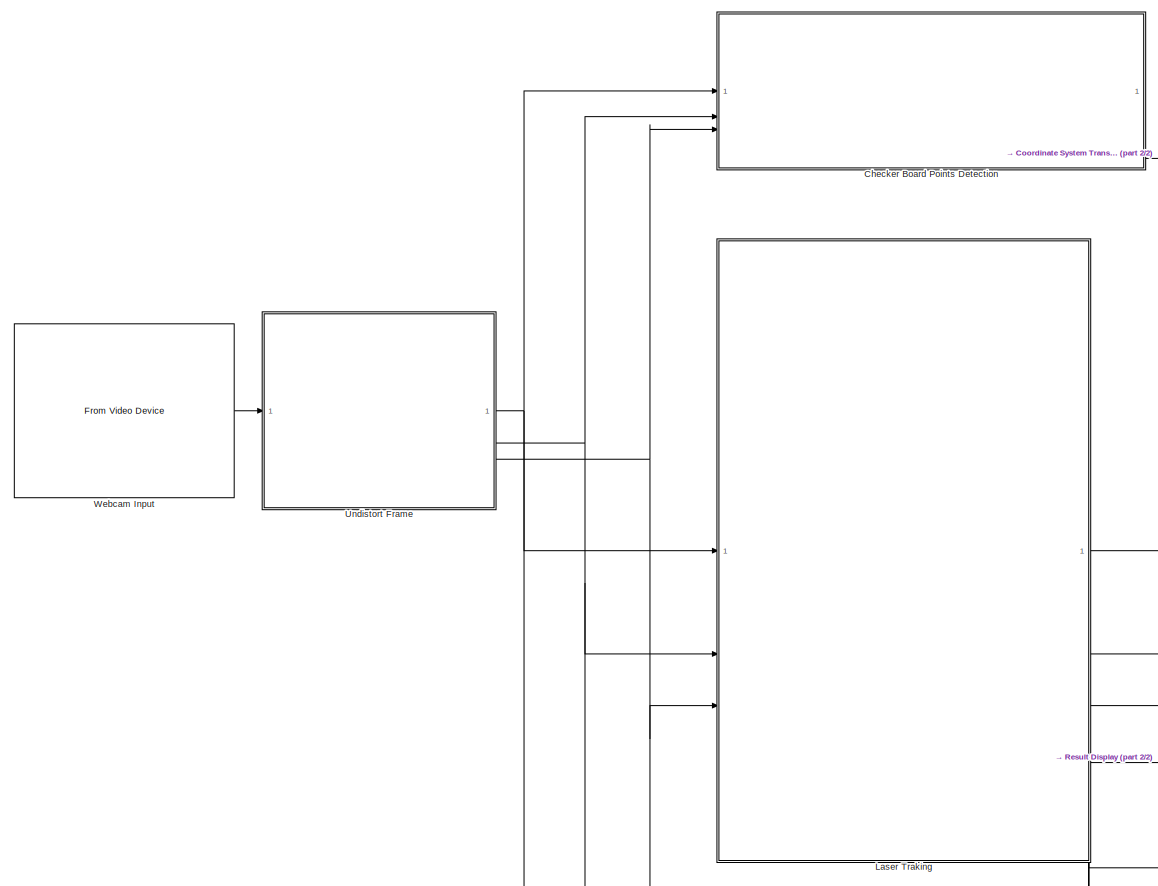
[diagram: root canvas - part 1/2, left side, full height]
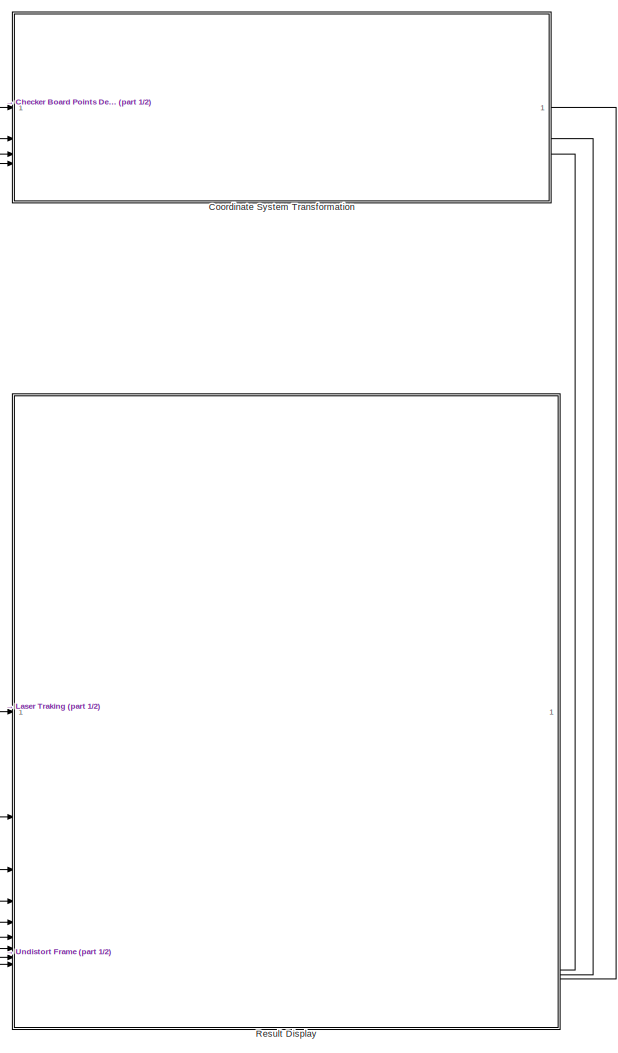
[diagram: root canvas - part 2/2, right side, full height]
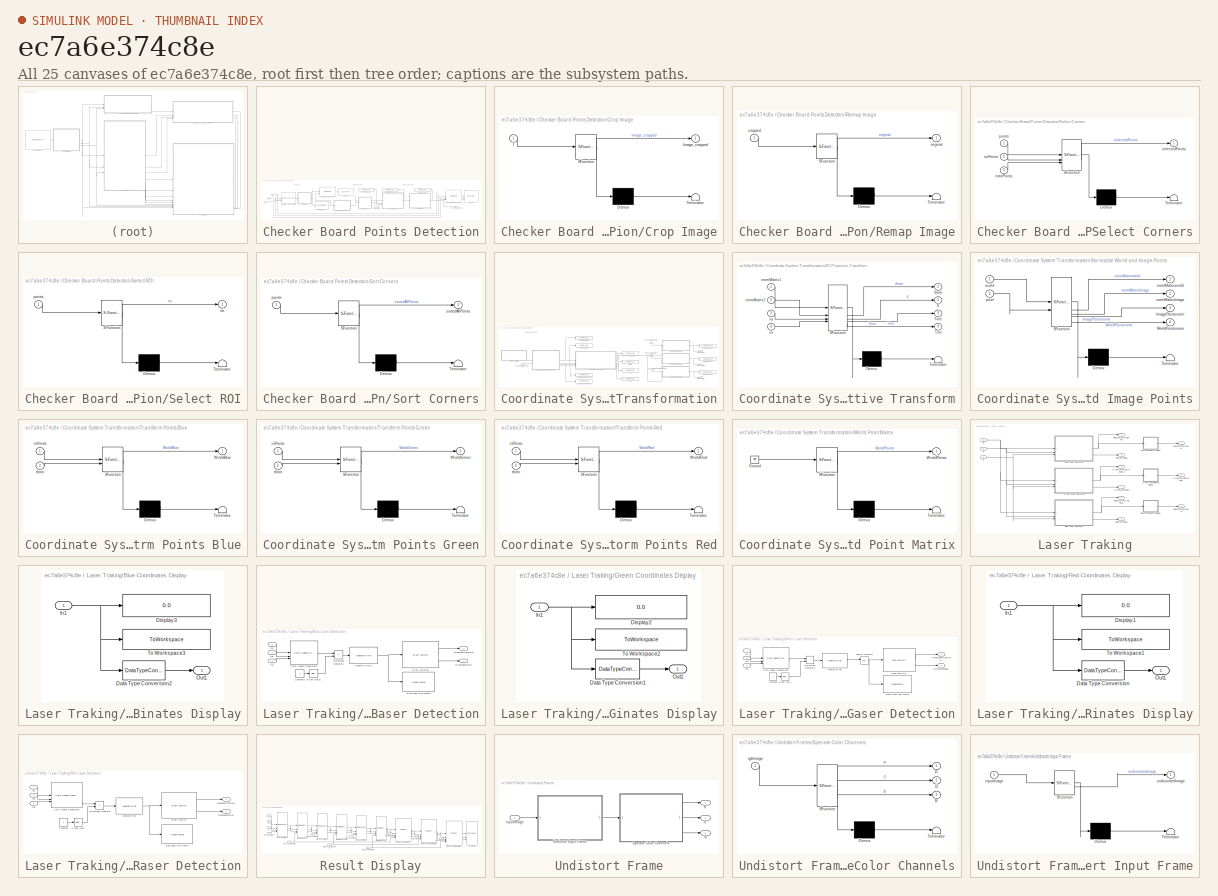
[diagram: thumbnail index - all 25 canvases of the model, root first then tree order]
MODEL slx_ec7a6e374c8e
KIND model
CONFIG AbsTol = auto
CONFIG EnableMultiTasking = on
CONFIG FixedStep = auto
CONFIG MaxStep = auto
CONFIG MinStep = auto
CONFIG RelTol = 1e-3
CONFIG SampleTimeConstraint = Unconstrained
CONFIG SolverName = ode45
CONFIG StartTime = 0.0
CONFIG StopTime = 100.0
BLOCK [SubSystem] Checker Board Points Detection
BLOCK [VideoViewer] Checker Board Points Detection/Alligned
  FigPos = [629.666666666667 1316.66666666667 1589.33333333333 1111.33333333333]
  ScopeSpecificationString = vipscopes.VideoViewerScopeCfg('CurrentConfiguration', extmgr.ConfigurationSet(extmgr.Configuration('Core','General UI',true),extmgr.Configuration('Core','Source UI',true),extmgr.Configuration('Sources','WiredSimulink',true),extmgr.Configuration('Sources','Simulink',false),extmgr.Configuration('Sources','File',false),extmgr.Configuration('Sources','Workspace',false),extmgr.Configuration('Sources','...<+1000ch>
  colormapValue = gray(256)
  imagePorts = separate color signals
BLOCK [Inport] Checker Board Points Detection/B
  Port = 3
BLOCK [Outport] Checker Board Points Detection/CheckerBoardPoints
BLOCK [Reference] Checker Board Points Detection/Color Space Conversion  REF=visionconversions/Color Space
 Conversion
  SourceBlock = visionconversions/Color Space\n Conversion
  SourceType = Color Space Conversion
BLOCK [Constant] Checker Board Points Detection/Constant
  Value = 48
BLOCK [Reference] Checker Board Points Detection/Corner Detection1  REF=visionanalysis/Corner Detection
  SourceBlock = visionanalysis/Corner Detection
  SourceType = Corner Detection
BLOCK [SubSystem] Checker Board Points Detection/Crop Image
  ErrorFcn = Stateflow.Translate.translate
  PermitHierarchicalResolution = ExplicitOnly
  SFBlockType = MATLAB Function
  TreatAsAtomicUnit = on
BLOCK [Demux] Checker Board Points Detection/Crop Image/ Demux 
  Outputs = 1
BLOCK [S-Function] Checker Board Points Detection/Crop Image/ SFunction 
  EnableBusSupport = on
  FunctionName = sf_sfun
  PortCounts = [1 2]
  SFcnIsStateOwnerBlock = off
  SFunctionDeploymentMode = off
  Tag = Stateflow S-Function 6
BLOCK [Terminator] Checker Board Points Detection/Crop Image/ Terminator 
BLOCK [Inport] Checker Board Points Detection/Crop Image/I
BLOCK [Outport] Checker Board Points Detection/Crop Image/Image_cropped
BLOCK [Reference] Checker Board Points Detection/Draw All Detected Corners  REF=visiontextngfix/Draw Markers
  SourceBlock = visiontextngfix/Draw Markers
  SourceType = Draw Markers
BLOCK [Reference] Checker Board Points Detection/Draw All Detected Corners3  REF=visiontextngfix/Draw Markers
  SourceBlock = visiontextngfix/Draw Markers
  SourceType = Draw Markers
BLOCK [Inport] Checker Board Points Detection/G
  Port = 2
BLOCK [Inport] Checker Board Points Detection/R
BLOCK [SubSystem] Checker Board Points Detection/Remap Image
  ErrorFcn = Stateflow.Translate.translate
  PermitHierarchicalResolution = ExplicitOnly
  SFBlockType = MATLAB Function
  TreatAsAtomicUnit = on
BLOCK [Demux] Checker Board Points Detection/Remap Image/ Demux 
  Outputs = 1
BLOCK [S-Function] Checker Board Points Detection/Remap Image/ SFunction 
  EnableBusSupport = on
  FunctionName = sf_sfun
  PortCounts = [1 2]
  SFcnIsStateOwnerBlock = off
  SFunctionDeploymentMode = off
  Tag = Stateflow S-Function 7
BLOCK [Terminator] Checker Board Points Detection/Remap Image/ Terminator 
BLOCK [Inport] Checker Board Points Detection/Remap Image/cropped
BLOCK [Outport] Checker Board Points Detection/Remap Image/original
BLOCK [SubSystem] Checker Board Points Detection/Select Corners
  ErrorFcn = Stateflow.Translate.translate
  PermitHierarchicalResolution = ExplicitOnly
  SFBlockType = MATLAB Function
  TreatAsAtomicUnit = on
BLOCK [Demux] Checker Board Points Detection/Select Corners/ Demux 
  Outputs = 1
BLOCK [S-Function] Checker Board Points Detection/Select Corners/ SFunction 
  EnableBusSupport = on
  FunctionName = sf_sfun
  PortCounts = [3 2]
  SFcnIsStateOwnerBlock = off
  SFunctionDeploymentMode = off
  Tag = Stateflow S-Function 1
BLOCK [Terminator] Checker Board Points Detection/Select Corners/ Terminator 
BLOCK [Inport] Checker Board Points Detection/Select Corners/maxPoints
  Port = 3
BLOCK [Inport] Checker Board Points Detection/Select Corners/points
BLOCK [Inport] Checker Board Points Detection/Select Corners/roiPoints
  Port = 2
BLOCK [Outport] Checker Board Points Detection/Select Corners/selectedPoints
BLOCK [SubSystem] Checker Board Points Detection/Select ROI
  ErrorFcn = Stateflow.Translate.translate
  PermitHierarchicalResolution = ExplicitOnly
  SFBlockType = MATLAB Function
  TreatAsAtomicUnit = on
BLOCK [Demux] Checker Board Points Detection/Select ROI/ Demux 
  Outputs = 1
BLOCK [S-Function] Checker Board Points Detection/Select ROI/ SFunction 
  EnableBusSupport = on
  FunctionName = sf_sfun
  PortCounts = [1 2]
  SFcnIsStateOwnerBlock = off
  SFunctionDeploymentMode = off
  Tag = Stateflow S-Function 2
BLOCK [Terminator] Checker Board Points Detection/Select ROI/ Terminator 
BLOCK [Inport] Checker Board Points Detection/Select ROI/points
BLOCK [Outport] Checker Board Points Detection/Select ROI/roi
BLOCK [SubSystem] Checker Board Points Detection/Sort Corners
  ErrorFcn = Stateflow.Translate.translate
  PermitHierarchicalResolution = ExplicitOnly
  SFBlockType = MATLAB Function
  TreatAsAtomicUnit = on
BLOCK [Demux] Checker Board Points Detection/Sort Corners/ Demux 
  Outputs = 1
BLOCK [S-Function] Checker Board Points Detection/Sort Corners/ SFunction 
  EnableBusSupport = on
  FunctionName = sf_sfun
  PortCounts = [1 2]
  SFcnIsStateOwnerBlock = off
  SFunctionDeploymentMode = off
  Tag = Stateflow S-Function 4
BLOCK [Terminator] Checker Board Points Detection/Sort Corners/ Terminator 
BLOCK [Inport] Checker Board Points Detection/Sort Corners/points
BLOCK [Outport] Checker Board Points Detection/Sort Corners/sortedAllPoints
BLOCK [ToWorkspace] Checker Board Points Detection/To Workspace1
  FixptAsFi = on
  MaxDataPoints = inf
  SampleTime = -1
  Save2DSignal = 2-D array (concatenate along first dimension)
  SaveFormat = Structure With Time
  VariableName = PointsRemoved
BLOCK [ToWorkspace] Checker Board Points Detection/To Workspace2
  FixptAsFi = on
  MaxDataPoints = inf
  SampleTime = -1
  Save2DSignal = 2-D array (concatenate along first dimension)
  SaveFormat = Structure With Time
  VariableName = PointsSelected
BLOCK [ToWorkspace] Checker Board Points Detection/To Workspace4
  FixptAsFi = on
  MaxDataPoints = inf
  NameLocation = top
  SampleTime = -1
  Save2DSignal = 2-D array (concatenate along first dimension)
  SaveFormat = Structure With Time
  VariableName = CheckerboardPoints
BLOCK [VideoViewer] Checker Board Points Detection/cropped
  FigPos = [1282.33333333333 1388.66666666667 1277.33333333333 1286]
  ScopeSpecificationString = vipscopes.VideoViewerScopeCfg('CurrentConfiguration', extmgr.ConfigurationSet(extmgr.Configuration('Core','General UI',true),extmgr.Configuration('Core','Source UI',true),extmgr.Configuration('Sources','WiredSimulink',true),extmgr.Configuration('Visuals','Video',true),extmgr.Configuration('Tools','Image Navigation Tools',true,'Magnification',8,'FitToView',true),extmgr.Configuration('Tools','Image ...<+150ch>
  colormapValue = gray(256)
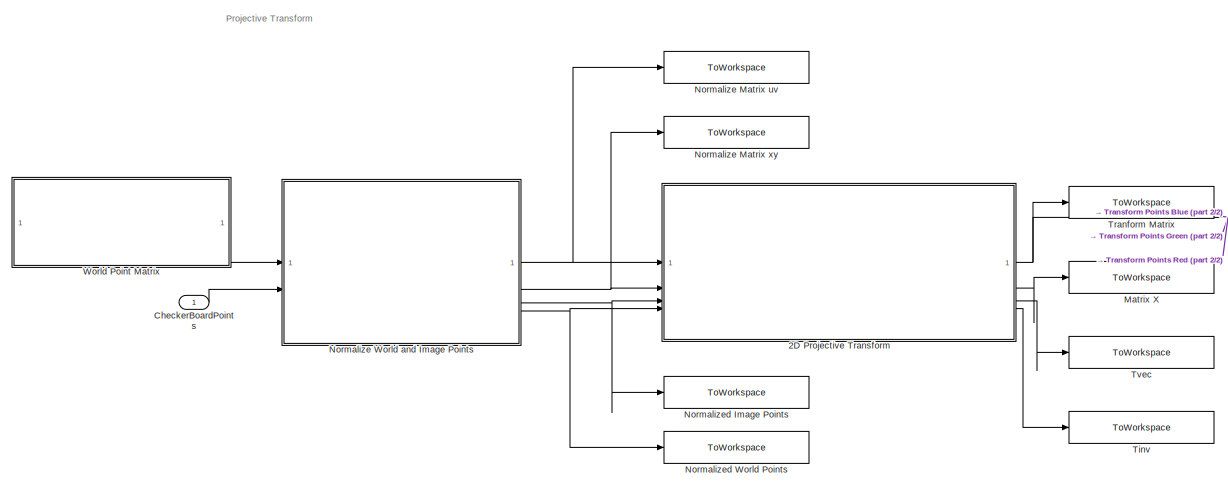
[diagram: Coordinate System Transformation - part 1/2, left side, full height]
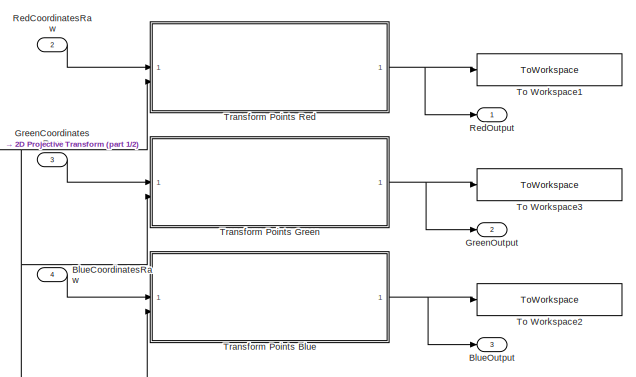
[diagram: Coordinate System Transformation - part 2/2, middle right region]
BLOCK [SubSystem] Coordinate System Transformation
  NameLocation = top
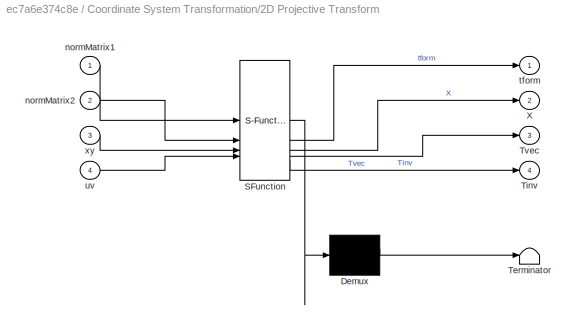
BLOCK [SubSystem] Coordinate System Transformation/2D Projective Transform
  ErrorFcn = Stateflow.Translate.translate
  PermitHierarchicalResolution = ExplicitOnly
  SFBlockType = MATLAB Function
  TreatAsAtomicUnit = on
BLOCK [Demux] Coordinate System Transformation/2D Projective Transform/ Demux 
  Outputs = 1
BLOCK [S-Function] Coordinate System Transformation/2D Projective Transform/ SFunction 
  EnableBusSupport = on
  FunctionName = sf_sfun
  PortCounts = [4 5]
  SFcnIsStateOwnerBlock = off
  SFunctionDeploymentMode = off
  Tag = Stateflow S-Function 24
BLOCK [Terminator] Coordinate System Transformation/2D Projective Transform/ Terminator 
BLOCK [Outport] Coordinate System Transformation/2D Projective Transform/Tinv
  Port = 4
BLOCK [Outport] Coordinate System Transformation/2D Projective Transform/Tvec
  Port = 3
BLOCK [Outport] Coordinate System Transformation/2D Projective Transform/X
  Port = 2
BLOCK [Inport] Coordinate System Transformation/2D Projective Transform/normMatrix1
BLOCK [Inport] Coordinate System Transformation/2D Projective Transform/normMatrix2
  Port = 2
BLOCK [Outport] Coordinate System Transformation/2D Projective Transform/tform
BLOCK [Inport] Coordinate System Transformation/2D Projective Transform/uv
  Port = 4
BLOCK [Inport] Coordinate System Transformation/2D Projective Transform/xy
  Port = 3
BLOCK [Inport] Coordinate System Transformation/BlueCoordinatesRaw
  Port = 4
BLOCK [Outport] Coordinate System Transformation/BlueOutput
  Port = 3
BLOCK [Inport] Coordinate System Transformation/CheckerBoardPoints
BLOCK [Inport] Coordinate System Transformation/GreenCoordinatesRaw
  Port = 3
BLOCK [Outport] Coordinate System Transformation/GreenOutput
  Port = 2
BLOCK [ToWorkspace] Coordinate System Transformation/Matrix X
  FixptAsFi = on
  MaxDataPoints = inf
  SampleTime = -1
  Save2DSignal = 2-D array (concatenate along first dimension)
  SaveFormat = Structure With Time
  VariableName = X
BLOCK [ToWorkspace] Coordinate System Transformation/Normalize Matrix uv
  FixptAsFi = on
  MaxDataPoints = inf
  SampleTime = -1
  Save2DSignal = 2-D array (concatenate along first dimension)
  SaveFormat = Structure With Time
  VariableName = NormMatrixuv
BLOCK [ToWorkspace] Coordinate System Transformation/Normalize Matrix xy
  FixptAsFi = on
  MaxDataPoints = inf
  SampleTime = -1
  Save2DSignal = 2-D array (concatenate along first dimension)
  SaveFormat = Structure With Time
  VariableName = NormMatrixXY
BLOCK [SubSystem] Coordinate System Transformation/Normalize World and Image Points
  ErrorFcn = Stateflow.Translate.translate
  PermitHierarchicalResolution = ExplicitOnly
  SFBlockType = MATLAB Function
  TreatAsAtomicUnit = on
BLOCK [Demux] Coordinate System Transformation/Normalize World and Image Points/ Demux 
  Outputs = 1
BLOCK [S-Function] Coordinate System Transformation/Normalize World and Image Points/ SFunction 
  EnableBusSupport = on
  FunctionName = sf_sfun
  PortCounts = [2 5]
  SFcnIsStateOwnerBlock = off
  SFunctionDeploymentMode = off
  Tag = Stateflow S-Function 23
BLOCK [Terminator] Coordinate System Transformation/Normalize World and Image Points/ Terminator 
BLOCK [Outport] Coordinate System Transformation/Normalize World and Image Points/ImagePointsnorm
  Port = 3
BLOCK [Outport] Coordinate System Transformation/Normalize World and Image Points/WorldPointsnorm
  Port = 4
BLOCK [Outport] Coordinate System Transformation/Normalize World and Image Points/normMatrixImage
  Port = 2
BLOCK [Outport] Coordinate System Transformation/Normalize World and Image Points/normMatrixworld
BLOCK [Inport] Coordinate System Transformation/Normalize World and Image Points/pixel
  Port = 2
BLOCK [Inport] Coordinate System Transformation/Normalize World and Image Points/world
BLOCK [ToWorkspace] Coordinate System Transformation/Normalized Image Points
  FixptAsFi = on
  MaxDataPoints = inf
  SampleTime = -1
  Save2DSignal = 2-D array (concatenate along first dimension)
  SaveFormat = Structure With Time
  VariableName = ImagePointsNorm
BLOCK [ToWorkspace] Coordinate System Transformation/Normalized World Points
  FixptAsFi = on
  MaxDataPoints = inf
  SampleTime = -1
  Save2DSignal = 2-D array (concatenate along first dimension)
  SaveFormat = Structure With Time
  VariableName = WorldPointsnorm
BLOCK [Inport] Coordinate System Transformation/RedCoordinatesRaw
  Port = 2
BLOCK [Outport] Coordinate System Transformation/RedOutput
BLOCK [ToWorkspace] Coordinate System Transformation/Tinv
  FixptAsFi = on
  MaxDataPoints = inf
  SampleTime = -1
  Save2DSignal = 2-D array (concatenate along first dimension)
  SaveFormat = Structure With Time
  VariableName = Tinv
BLOCK [ToWorkspace] Coordinate System Transformation/To Workspace1
  FixptAsFi = on
  MaxDataPoints = inf
  SampleTime = -1
  Save2DSignal = 2-D array (concatenate along first dimension)
  SaveFormat = Structure With Time
  VariableName = WorldRed
BLOCK [ToWorkspace] Coordinate System Transformation/To Workspace2
  FixptAsFi = on
  MaxDataPoints = inf
  SampleTime = -1
  Save2DSignal = 2-D array (concatenate along first dimension)
  SaveFormat = Structure With Time
  VariableName = WorldBlue
BLOCK [ToWorkspace] Coordinate System Transformation/To Workspace3
  FixptAsFi = on
  MaxDataPoints = inf
  SampleTime = -1
  Save2DSignal = 2-D array (concatenate along first dimension)
  SaveFormat = Structure With Time
  VariableName = WorldGreen
BLOCK [ToWorkspace] Coordinate System Transformation/Tranform Matrix
  FixptAsFi = on
  MaxDataPoints = inf
  SampleTime = -1
  Save2DSignal = 2-D array (concatenate along first dimension)
  SaveFormat = Structure With Time
  VariableName = tform
BLOCK [SubSystem] Coordinate System Transformation/Transform Points Blue
  ErrorFcn = Stateflow.Translate.translate
  PermitHierarchicalResolution = ExplicitOnly
  SFBlockType = MATLAB Function
  TreatAsAtomicUnit = on
BLOCK [Demux] Coordinate System Transformation/Transform Points Blue/ Demux 
  Outputs = 1
BLOCK [S-Function] Coordinate System Transformation/Transform Points Blue/ SFunction 
  EnableBusSupport = on
  FunctionName = sf_sfun
  PortCounts = [2 2]
  SFcnIsStateOwnerBlock = off
  SFunctionDeploymentMode = off
  Tag = Stateflow S-Function 10
BLOCK [Terminator] Coordinate System Transformation/Transform Points Blue/ Terminator 
BLOCK [Outport] Coordinate System Transformation/Transform Points Blue/WorldBlue
BLOCK [Inport] Coordinate System Transformation/Transform Points Blue/inPoints
BLOCK [Inport] Coordinate System Transformation/Transform Points Blue/tform
  Port = 2
BLOCK [SubSystem] Coordinate System Transformation/Transform Points Green
  ErrorFcn = Stateflow.Translate.translate
  PermitHierarchicalResolution = ExplicitOnly
  SFBlockType = MATLAB Function
  TreatAsAtomicUnit = on
BLOCK [Demux] Coordinate System Transformation/Transform Points Green/ Demux 
  Outputs = 1
BLOCK [S-Function] Coordinate System Transformation/Transform Points Green/ SFunction 
  EnableBusSupport = on
  FunctionName = sf_sfun
  PortCounts = [2 2]
  SFcnIsStateOwnerBlock = off
  SFunctionDeploymentMode = off
  Tag = Stateflow S-Function 26
BLOCK [Terminator] Coordinate System Transformation/Transform Points Green/ Terminator 
BLOCK [Outport] Coordinate System Transformation/Transform Points Green/WorldGreen
BLOCK [Inport] Coordinate System Transformation/Transform Points Green/inPoints
BLOCK [Inport] Coordinate System Transformation/Transform Points Green/tform
  Port = 2
BLOCK [SubSystem] Coordinate System Transformation/Transform Points Red
  ErrorFcn = Stateflow.Translate.translate
  PermitHierarchicalResolution = ExplicitOnly
  SFBlockType = MATLAB Function
  TreatAsAtomicUnit = on
BLOCK [Demux] Coordinate System Transformation/Transform Points Red/ Demux 
  Outputs = 1
BLOCK [S-Function] Coordinate System Transformation/Transform Points Red/ SFunction 
  EnableBusSupport = on
  FunctionName = sf_sfun
  PortCounts = [2 2]
  SFcnIsStateOwnerBlock = off
  SFunctionDeploymentMode = off
  Tag = Stateflow S-Function 25
BLOCK [Terminator] Coordinate System Transformation/Transform Points Red/ Terminator 
BLOCK [Outport] Coordinate System Transformation/Transform Points Red/WorldRed
BLOCK [Inport] Coordinate System Transformation/Transform Points Red/inPoints
BLOCK [Inport] Coordinate System Transformation/Transform Points Red/tform
  Port = 2
BLOCK [ToWorkspace] Coordinate System Transformation/Tvec
  FixptAsFi = on
  MaxDataPoints = inf
  SampleTime = -1
  Save2DSignal = 2-D array (concatenate along first dimension)
  SaveFormat = Structure With Time
  VariableName = Tvec
BLOCK [SubSystem] Coordinate System Transformation/World Point Matrix
  ErrorFcn = Stateflow.Translate.translate
  PermitHierarchicalResolution = ExplicitOnly
  SFBlockType = MATLAB Function
  TreatAsAtomicUnit = on
BLOCK [Demux] Coordinate System Transformation/World Point Matrix/ Demux 
  Outputs = 1
BLOCK [Ground] Coordinate System Transformation/World Point Matrix/ Ground 
BLOCK [S-Function] Coordinate System Transformation/World Point Matrix/ SFunction 
  EnableBusSupport = on
  FunctionName = sf_sfun
  PortCounts = [1 2]
  SFcnIsStateOwnerBlock = off
  SFunctionDeploymentMode = off
  Tag = Stateflow S-Function 11
BLOCK [Terminator] Coordinate System Transformation/World Point Matrix/ Terminator 
BLOCK [Outport] Coordinate System Transformation/World Point Matrix/WorldPoints
BLOCK [SubSystem] Laser Traking
BLOCK [Inport] Laser Traking/B
  Port = 3
BLOCK [SubSystem] Laser Traking/Blue Coordinates Display
BLOCK [DataTypeConversion] Laser Traking/Blue Coordinates Display/Data Type Conversion2
  ConvertRealWorld = Stored Integer (SI)
  RndMeth = Floor
  SaturateOnIntegerOverflow = off
BLOCK [Display] Laser Traking/Blue Coordinates Display/Display3
  Decimation = 1
BLOCK [Inport] Laser Traking/Blue Coordinates Display/In1
BLOCK [Outport] Laser Traking/Blue Coordinates Display/Out1
BLOCK [ToWorkspace] Laser Traking/Blue Coordinates Display/To Workspace3
  FixptAsFi = on
  MaxDataPoints = inf
  SampleTime = -1
  Save2DSignal = 2-D array (concatenate along first dimension)
  VariableName = BlueCoordinates
BLOCK [SubSystem] Laser Traking/Blue Laser Detection
BLOCK [Reference] Laser Traking/Blue Laser Detection/Blob Analysis3  REF=visionstatistics/Blob Analysis
  SourceBlock = visionstatistics/Blob Analysis
  SourceType = Blob Analysis
  Tag = vipblks_row_conv
BLOCK [VideoViewer] Laser Traking/Blue Laser Detection/Blue Laser BW viewer
  FigPos = [933 1177.33333333333 1538 856.666666666667]
  ScopeSpecificationString = vipscopes.VideoViewerScopeCfg('CurrentConfiguration', extmgr.ConfigurationSet(extmgr.Configuration('Core','General UI',true),extmgr.Configuration('Core','Source UI',true),extmgr.Configuration('Sources','WiredSimulink',true),extmgr.Configuration('Visuals','Video',true),extmgr.Configuration('Tools','Image Navigation Tools',true),extmgr.Configuration('Tools','Image Tool',true),extmgr.Configuration('T...<+101ch>
  colormapValue = gray(256)
BLOCK [Outport] Laser Traking/Blue Laser Detection/BlueLaserBBox
  Port = 2
BLOCK [Outport] Laser Traking/Blue Laser Detection/BlueLaserCentroid
BLOCK [Reference] Laser Traking/Blue Laser Detection/Color Space Conversion3  REF=visionconversions/Color Space
 Conversion
  SourceBlock = visionconversions/Color Space\n Conversion
  SourceType = Color Space Conversion
BLOCK [Constant] Laser Traking/Blue Laser Detection/Constant2
BLOCK [Inport] Laser Traking/Blue Laser Detection/In1
BLOCK [Inport] Laser Traking/Blue Laser Detection/In2
  Port = 2
BLOCK [Inport] Laser Traking/Blue Laser Detection/In3
  Port = 3
BLOCK [Reference] Laser Traking/Blue Laser Detection/Median Filter3  REF=visionanalysis/Median Filter
  SourceBlock = visionanalysis/Median Filter
  SourceType = Median Filter
BLOCK [RelationalOperator] Laser Traking/Blue Laser Detection/Relational Operator3
  InputSameDT = off
  Operator = >
  OutDataTypeStr = boolean
  RndMeth = Simplest
BLOCK [Reference] Laser Traking/Blue Laser Detection/Slider Gain2  REF=simulink/Math
Operations/Slider
Gain
  SourceBlock = simulink/Math\nOperations/Slider\nGain
  SourceType = Slider Gain
BLOCK [Outport] Laser Traking/BlueCoordinatesRaw
  Port = 8
BLOCK [Outport] Laser Traking/BlueLaserBBox
  Port = 9
BLOCK [Outport] Laser Traking/BlueLaserCentroidRaw
  Port = 3
BLOCK [Inport] Laser Traking/G
  Port = 2
BLOCK [SubSystem] Laser Traking/Green Coordinates Display
BLOCK [DataTypeConversion] Laser Traking/Green Coordinates Display/Data Type Conversion1
  ConvertRealWorld = Stored Integer (SI)
  RndMeth = Floor
  SaturateOnIntegerOverflow = off
BLOCK [Display] Laser Traking/Green Coordinates Display/Display2
  Decimation = 1
BLOCK [Inport] Laser Traking/Green Coordinates Display/In1
BLOCK [Outport] Laser Traking/Green Coordinates Display/Out1
BLOCK [ToWorkspace] Laser Traking/Green Coordinates Display/To Workspace2
  FixptAsFi = on
  MaxDataPoints = inf
  SampleTime = -1
  Save2DSignal = 2-D array (concatenate along first dimension)
  VariableName = GreenCoordinates
BLOCK [SubSystem] Laser Traking/Green Laser Detection
BLOCK [Reference] Laser Traking/Green Laser Detection/Blob Analysis1  REF=visionstatistics/Blob Analysis
  SourceBlock = visionstatistics/Blob Analysis
  SourceType = Blob Analysis
  Tag = vipblks_row_conv
BLOCK [Reference] Laser Traking/Green Laser Detection/Color Space Conversion2  REF=visionconversions/Color Space
 Conversion
  SourceBlock = visionconversions/Color Space\n Conversion
  SourceType = Color Space Conversion
BLOCK [Constant] Laser Traking/Green Laser Detection/Constant
BLOCK [VideoViewer] Laser Traking/Green Laser Detection/Green Laser BW viewer
  Commented = on
  FigPos = [991.666666666667 959.333333333333 1476 664]
  ScopeSpecificationString = vipscopes.VideoViewerScopeCfg('CurrentConfiguration', extmgr.ConfigurationSet(extmgr.Configuration('Core','General UI',true),extmgr.Configuration('Core','Source UI',true),extmgr.Configuration('Sources','WiredSimulink',true),extmgr.Configuration('Visuals','Video',true),extmgr.Configuration('Tools','Image Navigation Tools',true,'FitToView',true),extmgr.Configuration('Tools','Image Tool',true),extmgr...<+119ch>
  colormapValue = gray(256)
BLOCK [Outport] Laser Traking/Green Laser Detection/GreenLaserBBox
  Port = 2
BLOCK [Outport] Laser Traking/Green Laser Detection/GreenLaserCentroid
BLOCK [Inport] Laser Traking/Green Laser Detection/In1
BLOCK [Inport] Laser Traking/Green Laser Detection/In2
  Port = 2
BLOCK [Inport] Laser Traking/Green Laser Detection/In3
  Port = 3
BLOCK [Logic] Laser Traking/Green Laser Detection/Logical Operator
  AllPortsSameDT = off
  Operator = NOT
  OutDataTypeStr = boolean
BLOCK [Reference] Laser Traking/Green Laser Detection/Median Filter  REF=visionanalysis/Median Filter
  SourceBlock = visionanalysis/Median Filter
  SourceType = Median Filter
BLOCK [RelationalOperator] Laser Traking/Green Laser Detection/Relational Operator1
  InputSameDT = off
  Operator = >
  OutDataTypeStr = boolean
  RndMeth = Simplest
BLOCK [Reference] Laser Traking/Green Laser Detection/Slider Gain  REF=simulink/Math
Operations/Slider
Gain
  SourceBlock = simulink/Math\nOperations/Slider\nGain
  SourceType = Slider Gain
BLOCK [Outport] Laser Traking/GreenCoordinatesRaw
  Port = 6
BLOCK [Outport] Laser Traking/GreenLaserBBox
  Port = 7
BLOCK [Outport] Laser Traking/GreenLaserCentroidRaw
  Port = 2
BLOCK [Inport] Laser Traking/R
BLOCK [SubSystem] Laser Traking/Red Coordinates Display
BLOCK [DataTypeConversion] Laser Traking/Red Coordinates Display/Data Type Conversion
  ConvertRealWorld = Stored Integer (SI)
  RndMeth = Floor
  SaturateOnIntegerOverflow = off
BLOCK [Display] Laser Traking/Red Coordinates Display/Display1
  Decimation = 1
BLOCK [Inport] Laser Traking/Red Coordinates Display/In1
BLOCK [Outport] Laser Traking/Red Coordinates Display/Out1
BLOCK [ToWorkspace] Laser Traking/Red Coordinates Display/To Workspace1
  FixptAsFi = on
  MaxDataPoints = inf
  SampleTime = -1
  Save2DSignal = 2-D array (concatenate along first dimension)
  VariableName = RedCoordinates
BLOCK [SubSystem] Laser Traking/Red Laser Detection
  VariantControl = Choice
BLOCK [Reference] Laser Traking/Red Laser Detection/Blob Analysis  REF=visionstatistics/Blob Analysis
  SourceBlock = visionstatistics/Blob Analysis
  SourceType = Blob Analysis
  Tag = vipblks_row_conv
BLOCK [Reference] Laser Traking/Red Laser Detection/Color Space Conversion  REF=visionconversions/Color Space
 Conversion
  SourceBlock = visionconversions/Color Space\n Conversion
  SourceType = Color Space Conversion
BLOCK [Constant] Laser Traking/Red Laser Detection/Constant
BLOCK [Inport] Laser Traking/Red Laser Detection/In1
BLOCK [Inport] Laser Traking/Red Laser Detection/In2
  Port = 2
BLOCK [Inport] Laser Traking/Red Laser Detection/In3
  Port = 3
BLOCK [Reference] Laser Traking/Red Laser Detection/Median Filter  REF=visionanalysis/Median Filter
  SourceBlock = visionanalysis/Median Filter
  SourceType = Median Filter
BLOCK [VideoViewer] Laser Traking/Red Laser Detection/Red Laser BW viewer
  FigPos = [9 1382 2544 1278.66666666667]
  ScopeSpecificationString = vipscopes.VideoViewerScopeCfg('CurrentConfiguration', extmgr.ConfigurationSet(extmgr.Configuration('Core','General UI',true),extmgr.Configuration('Core','Source UI',true),extmgr.Configuration('Sources','WiredSimulink',true),extmgr.Configuration('Visuals','Video',true),extmgr.Configuration('Tools','Image Navigation Tools',true,'Magnification',16),extmgr.Configuration('Tools','Image Tool',true),extm...<+105ch>
  colormapValue = gray(256)
BLOCK [Outport] Laser Traking/Red Laser Detection/RedLaserBBox
  Port = 2
BLOCK [Outport] Laser Traking/Red Laser Detection/RedLaserCentroid
BLOCK [RelationalOperator] Laser Traking/Red Laser Detection/Relational Operator
  InputSameDT = off
  Operator = >
  OutDataTypeStr = boolean
  RndMeth = Simplest
BLOCK [Reference] Laser Traking/Red Laser Detection/Slider Gain  REF=simulink/Math
Operations/Slider
Gain
  SourceBlock = simulink/Math\nOperations/Slider\nGain
  SourceType = Slider Gain
BLOCK [Outport] Laser Traking/RedCoordinatesRaw
  Port = 4
BLOCK [Outport] Laser Traking/RedLaserBBox
  Port = 5
BLOCK [Outport] Laser Traking/RedLaserCentroidRaw
BLOCK [SubSystem] Result Display
  PortSchema = {"entries":[{"content":{"sides":[{"content":{"connectorIds":["In1","In2","In3","In4","In5","In6","In7","In8","In9"]},"type":"ConnectorPlacement.EquallySpacedRectSide","uuid":"b1906bfe-0566-47b0-9e68-516326f7bec6"},{"content":{"connectorIds":["In10","In11","In12"],"side":"RIGHT"},"type":"ConnectorPlacement.EquallySpacedRectSide","uuid":"6258ed97-87fe-4cc0-87ce-9e8e3abb5e56"},{"content":{"side":"TOP...<+284ch>
BLOCK [Inport] Result Display/B
  Port = 7
BLOCK [Reference] Result Display/Blue Laser BBox  REF=visiontextngfix/Draw Shapes
  SourceBlock = visiontextngfix/Draw Shapes
  SourceType = Draw Shapes
BLOCK [Inport] Result Display/BlueLaserBBox
  Port = 6
BLOCK [Inport] Result Display/BlueLaserCentroid
  Port = 5
BLOCK [Inport] Result Display/BlueOutput
  Port = 10
BLOCK [Reference] Result Display/Display Coordinate Blue  REF=visiontextngfix/Insert Text
  SourceBlock = visiontextngfix/Insert Text
  SourceType = Insert Text
BLOCK [Reference] Result Display/Display Coordinate Green  REF=visiontextngfix/Insert Text
  SourceBlock = visiontextngfix/Insert Text
  SourceType = Insert Text
BLOCK [Reference] Result Display/Display Coordinate Red  REF=visiontextngfix/Insert Text
  SourceBlock = visiontextngfix/Insert Text
  SourceType = Insert Text
BLOCK [Inport] Result Display/G
  Port = 8
BLOCK [Reference] Result Display/Green Laser BBox  REF=visiontextngfix/Draw Shapes
  SourceBlock = visiontextngfix/Draw Shapes
  SourceType = Draw Shapes
BLOCK [Inport] Result Display/GreenLaserBBox
  Port = 4
BLOCK [Inport] Result Display/GreenLaserCentroid
  Port = 3
BLOCK [Inport] Result Display/GreenOutput
  Port = 11
BLOCK [Reference] Result Display/Mark Blue Laser  REF=visiontextngfix/Draw Markers
  SourceBlock = visiontextngfix/Draw Markers
  SourceType = Draw Markers
BLOCK [Reference] Result Display/Mark Green Laser  REF=visiontextngfix/Draw Markers
  SourceBlock = visiontextngfix/Draw Markers
  SourceType = Draw Markers
BLOCK [Reference] Result Display/Mark Red Laser  REF=visiontextngfix/Draw Markers
  SourceBlock = visiontextngfix/Draw Markers
  SourceType = Draw Markers
BLOCK [VideoViewer] Result Display/Overview
  FigPos = [1 1390 2560 1294.66666666667]
  ScopeSpecificationString = vipscopes.VideoViewerScopeCfg('CurrentConfiguration', extmgr.ConfigurationSet(extmgr.Configuration('Core','General UI',true),extmgr.Configuration('Core','Source UI',true),extmgr.Configuration('Sources','WiredSimulink',true),extmgr.Configuration('Visuals','Video',true),extmgr.Configuration('Tools','Image Navigation Tools',true,'Magnification',4,'FitToView',true),extmgr.Configuration('Tools','Image ...<+121ch>
  colormapValue = gray(256)
  imagePorts = separate color signals
BLOCK [Inport] Result Display/R
  Port = 9
BLOCK [Reference] Result Display/Red Laser BBox  REF=visiontextngfix/Draw Shapes
  SourceBlock = visiontextngfix/Draw Shapes
  SourceType = Draw Shapes
BLOCK [Inport] Result Display/RedLaserBBox
  Port = 2
BLOCK [Inport] Result Display/RedLaserCentroid
BLOCK [Inport] Result Display/RedOutput
  Port = 12
BLOCK [SubSystem] Undistort Frame
BLOCK [Outport] Undistort Frame/B
  Port = 3
BLOCK [Outport] Undistort Frame/G
  Port = 2
BLOCK [Outport] Undistort Frame/R
BLOCK [SubSystem] Undistort Frame/Sperate Color Channels
  ErrorFcn = Stateflow.Translate.translate
  PermitHierarchicalResolution = ExplicitOnly
  SFBlockType = MATLAB Function
  TreatAsAtomicUnit = on
BLOCK [Demux] Undistort Frame/Sperate Color Channels/ Demux 
  Outputs = 1
BLOCK [S-Function] Undistort Frame/Sperate Color Channels/ SFunction 
  EnableBusSupport = on
  FunctionName = sf_sfun
  PortCounts = [1 4]
  SFcnIsStateOwnerBlock = off
  SFunctionDeploymentMode = off
  Tag = Stateflow S-Function 5
BLOCK [Terminator] Undistort Frame/Sperate Color Channels/ Terminator 
BLOCK [Outport] Undistort Frame/Sperate Color Channels/B
  Port = 3
BLOCK [Outport] Undistort Frame/Sperate Color Channels/G
  Port = 2
BLOCK [Outport] Undistort Frame/Sperate Color Channels/R
BLOCK [Inport] Undistort Frame/Sperate Color Channels/rgbImage
BLOCK [SubSystem] Undistort Frame/Undistort Input Frame
  ErrorFcn = Stateflow.Translate.translate
  PermitHierarchicalResolution = ExplicitOnly
  SFBlockType = MATLAB Function
  TreatAsAtomicUnit = on
BLOCK [Demux] Undistort Frame/Undistort Input Frame/ Demux 
  Outputs = 1
BLOCK [S-Function] Undistort Frame/Undistort Input Frame/ SFunction 
  EnableBusSupport = on
  FunctionName = sf_sfun
  PortCounts = [1 2]
  SFcnIsStateOwnerBlock = off
  SFunctionDeploymentMode = off
  Tag = Stateflow S-Function 9
BLOCK [Terminator] Undistort Frame/Undistort Input Frame/ Terminator 
BLOCK [Inport] Undistort Frame/Undistort Input Frame/inputImage
BLOCK [Outport] Undistort Frame/Undistort Input Frame/undistortedImage
BLOCK [Inport] Undistort Frame/inputImage
BLOCK [Reference] Webcam Input  REF=imaqlib/From Video Device
  SourceBlock = imaqlib/From Video Device
  SourceType = From Video Device
  UserDataPersistent = on
ANNOTATION Checker Board Points Detection: Filter Corner Points
ANNOTATION Checker Board Points Detection: Select ROI
ANNOTATION Checker Board Points Detection: Sort and Align Points
ANNOTATION Coordinate System Transformation: Projective Transform
NET Checker Board Points Detection/B:1 -> Checker Board Points Detection/Color Space Conversion:3, Checker Board Points Detection/Draw All Detected Corners3:3
LINE Checker Board Points Detection/Color Space Conversion:1 -> Checker Board Points Detection/Crop Image:1
LINE Checker Board Points Detection/Constant:1 -> Checker Board Points Detection/Select Corners:3
NET Checker Board Points Detection/Corner Detection1:1 -> Checker Board Points Detection/Draw All Detected Corners:2, Checker Board Points Detection/Remap Image:1
NET Checker Board Points Detection/Crop Image:1 -> Checker Board Points Detection/Corner Detection1:1, Checker Board Points Detection/Draw All Detected Corners:1
LINE Checker Board Points Detection/Draw All Detected Corners3:1 -> Checker Board Points Detection/Alligned:1
LINE Checker Board Points Detection/Draw All Detected Corners3:2 -> Checker Board Points Detection/Alligned:2
LINE Checker Board Points Detection/Draw All Detected Corners3:3 -> Checker Board Points Detection/Alligned:3
LINE Checker Board Points Detection/Draw All Detected Corners:1 -> Checker Board Points Detection/cropped:1
NET Checker Board Points Detection/G:1 -> Checker Board Points Detection/Color Space Conversion:2, Checker Board Points Detection/Draw All Detected Corners3:2
NET Checker Board Points Detection/R:1 -> Checker Board Points Detection/Color Space Conversion:1, Checker Board Points Detection/Draw All Detected Corners3:1
NET Checker Board Points Detection/Remap Image:1 -> Checker Board Points Detection/Select Corners:1, Checker Board Points Detection/Select ROI:1
NET Checker Board Points Detection/Select Corners:1 -> Checker Board Points Detection/Sort Corners:1, Checker Board Points Detection/To Workspace2:1
NET Checker Board Points Detection/Select ROI:1 -> Checker Board Points Detection/Select Corners:2, Checker Board Points Detection/To Workspace1:1
NET Checker Board Points Detection/Sort Corners:1 -> Checker Board Points Detection/CheckerBoardPoints:1, Checker Board Points Detection/Draw All Detected Corners3:4, Checker Board Points Detection/To Workspace4:1
LINE Checker Board Points Detection:1 -> Coordinate System Transformation:1
NET Coordinate System Transformation/2D Projective Transform:1 -> Coordinate System Transformation/Tranform Matrix:1, Coordinate System Transformation/Transform Points Blue:2, Coordinate System Transformation/Transform Points Green:2, Coordinate System Transformation/Transform Points Red:2
LINE Coordinate System Transformation/2D Projective Transform:2 -> Coordinate System Transformation/Matrix X:1
LINE Coordinate System Transformation/2D Projective Transform:3 -> Coordinate System Transformation/Tvec:1
LINE Coordinate System Transformation/2D Projective Transform:4 -> Coordinate System Transformation/Tinv:1
LINE Coordinate System Transformation/BlueCoordinatesRaw:1 -> Coordinate System Transformation/Transform Points Blue:1
LINE Coordinate System Transformation/CheckerBoardPoints:1 -> Coordinate System Transformation/Normalize World and Image Points:2
LINE Coordinate System Transformation/GreenCoordinatesRaw:1 -> Coordinate System Transformation/Transform Points Green:1
NET Coordinate System Transformation/Normalize World and Image Points:1 -> Coordinate System Transformation/2D Projective Transform:1, Coordinate System Transformation/Normalize Matrix uv:1
NET Coordinate System Transformation/Normalize World and Image Points:2 -> Coordinate System Transformation/2D Projective Transform:2, Coordinate System Transformation/Normalize Matrix xy:1
NET Coordinate System Transformation/Normalize World and Image Points:3 -> Coordinate System Transformation/2D Projective Transform:3, Coordinate System Transformation/Normalized Image Points:1
NET Coordinate System Transformation/Normalize World and Image Points:4 -> Coordinate System Transformation/2D Projective Transform:4, Coordinate System Transformation/Normalized World Points:1
LINE Coordinate System Transformation/RedCoordinatesRaw:1 -> Coordinate System Transformation/Transform Points Red:1
NET Coordinate System Transformation/Transform Points Blue:1 -> Coordinate System Transformation/BlueOutput:1, Coordinate System Transformation/To Workspace2:1
NET Coordinate System Transformation/Transform Points Green:1 -> Coordinate System Transformation/GreenOutput:1, Coordinate System Transformation/To Workspace3:1
NET Coordinate System Transformation/Transform Points Red:1 -> Coordinate System Transformation/RedOutput:1, Coordinate System Transformation/To Workspace1:1
LINE Coordinate System Transformation/World Point Matrix:1 -> Coordinate System Transformation/Normalize World and Image Points:1
LINE Coordinate System Transformation:1 -> Result Display:12
LINE Coordinate System Transformation:2 -> Result Display:11
LINE Coordinate System Transformation:3 -> Result Display:10
NET Laser Traking/B:1 -> Laser Traking/Blue Laser Detection:3, Laser Traking/Green Laser Detection:3, Laser Traking/Red Laser Detection:3
LINE Laser Traking/Blue Coordinates Display/Data Type Conversion2:1 -> Laser Traking/Blue Coordinates Display/Out1:1
NET Laser Traking/Blue Coordinates Display/In1:1 -> Laser Traking/Blue Coordinates Display/Data Type Conversion2:1, Laser Traking/Blue Coordinates Display/Display3:1, Laser Traking/Blue Coordinates Display/To Workspace3:1
LINE Laser Traking/Blue Coordinates Display:1 -> Laser Traking/BlueCoordinatesRaw:1
LINE Laser Traking/Blue Laser Detection/Blob Analysis3:1 -> Laser Traking/Blue Laser Detection/BlueLaserCentroid:1
LINE Laser Traking/Blue Laser Detection/Blob Analysis3:2 -> Laser Traking/Blue Laser Detection/BlueLaserBBox:1
LINE Laser Traking/Blue Laser Detection/Color Space Conversion3:2 -> Laser Traking/Blue Laser Detection/Relational Operator3:1
LINE Laser Traking/Blue Laser Detection/Constant2:1 -> Laser Traking/Blue Laser Detection/Slider Gain2:1
LINE Laser Traking/Blue Laser Detection/In1:1 -> Laser Traking/Blue Laser Detection/Color Space Conversion3:1
LINE Laser Traking/Blue Laser Detection/In2:1 -> Laser Traking/Blue Laser Detection/Color Space Conversion3:2
LINE Laser Traking/Blue Laser Detection/In3:1 -> Laser Traking/Blue Laser Detection/Color Space Conversion3:3
NET Laser Traking/Blue Laser Detection/Median Filter3:1 -> Laser Traking/Blue Laser Detection/Blob Analysis3:1, Laser Traking/Blue Laser Detection/Blue Laser BW viewer:1
LINE Laser Traking/Blue Laser Detection/Relational Operator3:1 -> Laser Traking/Blue Laser Detection/Median Filter3:1
LINE Laser Traking/Blue Laser Detection/Slider Gain2:1 -> Laser Traking/Blue Laser Detection/Relational Operator3:2
NET Laser Traking/Blue Laser Detection:1 -> Laser Traking/Blue Coordinates Display:1, Laser Traking/BlueLaserCentroidRaw:1
LINE Laser Traking/Blue Laser Detection:2 -> Laser Traking/BlueLaserBBox:1
NET Laser Traking/G:1 -> Laser Traking/Blue Laser Detection:2, Laser Traking/Green Laser Detection:2, Laser Traking/Red Laser Detection:2
LINE Laser Traking/Green Coordinates Display/Data Type Conversion1:1 -> Laser Traking/Green Coordinates Display/Out1:1
NET Laser Traking/Green Coordinates Display/In1:1 -> Laser Traking/Green Coordinates Display/Data Type Conversion1:1, Laser Traking/Green Coordinates Display/Display2:1, Laser Traking/Green Coordinates Display/To Workspace2:1
LINE Laser Traking/Green Coordinates Display:1 -> Laser Traking/GreenCoordinatesRaw:1
LINE Laser Traking/Green Laser Detection/Blob Analysis1:1 -> Laser Traking/Green Laser Detection/GreenLaserCentroid:1
LINE Laser Traking/Green Laser Detection/Blob Analysis1:2 -> Laser Traking/Green Laser Detection/GreenLaserBBox:1
LINE Laser Traking/Green Laser Detection/Color Space Conversion2:2 -> Laser Traking/Green Laser Detection/Relational Operator1:1
LINE Laser Traking/Green Laser Detection/Constant:1 -> Laser Traking/Green Laser Detection/Slider Gain:1
LINE Laser Traking/Green Laser Detection/In1:1 -> Laser Traking/Green Laser Detection/Color Space Conversion2:1
LINE Laser Traking/Green Laser Detection/In2:1 -> Laser Traking/Green Laser Detection/Color Space Conversion2:2
LINE Laser Traking/Green Laser Detection/In3:1 -> Laser Traking/Green Laser Detection/Color Space Conversion2:3
NET Laser Traking/Green Laser Detection/Logical Operator:1 -> Laser Traking/Green Laser Detection/Blob Analysis1:1, Laser Traking/Green Laser Detection/Green Laser BW viewer:1
LINE Laser Traking/Green Laser Detection/Median Filter:1 -> Laser Traking/Green Laser Detection/Logical Operator:1
LINE Laser Traking/Green Laser Detection/Relational Operator1:1 -> Laser Traking/Green Laser Detection/Median Filter:1
LINE Laser Traking/Green Laser Detection/Slider Gain:1 -> Laser Traking/Green Laser Detection/Relational Operator1:2
NET Laser Traking/Green Laser Detection:1 -> Laser Traking/Green Coordinates Display:1, Laser Traking/GreenLaserCentroidRaw:1
LINE Laser Traking/Green Laser Detection:2 -> Laser Traking/GreenLaserBBox:1
NET Laser Traking/R:1 -> Laser Traking/Blue Laser Detection:1, Laser Traking/Green Laser Detection:1, Laser Traking/Red Laser Detection:1
LINE Laser Traking/Red Coordinates Display/Data Type Conversion:1 -> Laser Traking/Red Coordinates Display/Out1:1
NET Laser Traking/Red Coordinates Display/In1:1 -> Laser Traking/Red Coordinates Display/Data Type Conversion:1, Laser Traking/Red Coordinates Display/Display1:1, Laser Traking/Red Coordinates Display/To Workspace1:1
LINE Laser Traking/Red Coordinates Display:1 -> Laser Traking/RedCoordinatesRaw:1
LINE Laser Traking/Red Laser Detection/Blob Analysis:1 -> Laser Traking/Red Laser Detection/RedLaserCentroid:1
LINE Laser Traking/Red Laser Detection/Blob Analysis:2 -> Laser Traking/Red Laser Detection/RedLaserBBox:1
LINE Laser Traking/Red Laser Detection/Color Space Conversion:3 -> Laser Traking/Red Laser Detection/Relational Operator:1
LINE Laser Traking/Red Laser Detection/Constant:1 -> Laser Traking/Red Laser Detection/Slider Gain:1
LINE Laser Traking/Red Laser Detection/In1:1 -> Laser Traking/Red Laser Detection/Color Space Conversion:1
LINE Laser Traking/Red Laser Detection/In2:1 -> Laser Traking/Red Laser Detection/Color Space Conversion:2
LINE Laser Traking/Red Laser Detection/In3:1 -> Laser Traking/Red Laser Detection/Color Space Conversion:3
NET Laser Traking/Red Laser Detection/Median Filter:1 -> Laser Traking/Red Laser Detection/Blob Analysis:1, Laser Traking/Red Laser Detection/Red Laser BW viewer:1
LINE Laser Traking/Red Laser Detection/Relational Operator:1 -> Laser Traking/Red Laser Detection/Median Filter:1
LINE Laser Traking/Red Laser Detection/Slider Gain:1 -> Laser Traking/Red Laser Detection/Relational Operator:2
NET Laser Traking/Red Laser Detection:1 -> Laser Traking/Red Coordinates Display:1, Laser Traking/RedLaserCentroidRaw:1
LINE Laser Traking/Red Laser Detection:2 -> Laser Traking/RedLaserBBox:1
LINE Laser Traking:1 -> Coordinate System Transformation:2
LINE Laser Traking:2 -> Coordinate System Transformation:3
LINE Laser Traking:3 -> Coordinate System Transformation:4
LINE Laser Traking:4 -> Result Display:1
LINE Laser Traking:5 -> Result Display:2
LINE Laser Traking:6 -> Result Display:3
LINE Laser Traking:7 -> Result Display:4
LINE Laser Traking:8 -> Result Display:5
LINE Laser Traking:9 -> Result Display:6
LINE Result Display/B:1 -> Result Display/Red Laser BBox:3
LINE Result Display/Blue Laser BBox:1 -> Result Display/Mark Blue Laser:1
LINE Result Display/Blue Laser BBox:2 -> Result Display/Mark Blue Laser:2
LINE Result Display/Blue Laser BBox:3 -> Result Display/Mark Blue Laser:3
LINE Result Display/BlueLaserBBox:1 -> Result Display/Blue Laser BBox:4
NET Result Display/BlueLaserCentroid:1 -> Result Display/Display Coordinate Blue:5, Result Display/Mark Blue Laser:4
LINE Result Display/BlueOutput:1 -> Result Display/Display Coordinate Blue:4
LINE Result Display/Display Coordinate Blue:1 -> Result Display/Overview:1
LINE Result Display/Display Coordinate Blue:2 -> Result Display/Overview:2
LINE Result Display/Display Coordinate Blue:3 -> Result Display/Overview:3
LINE Result Display/Display Coordinate Green:1 -> Result Display/Display Coordinate Blue:1
LINE Result Display/Display Coordinate Green:2 -> Result Display/Display Coordinate Blue:2
LINE Result Display/Display Coordinate Green:3 -> Result Display/Display Coordinate Blue:3
LINE Result Display/Display Coordinate Red:1 -> Result Display/Display Coordinate Green:1
LINE Result Display/Display Coordinate Red:2 -> Result Display/Display Coordinate Green:2
LINE Result Display/Display Coordinate Red:3 -> Result Display/Display Coordinate Green:3
LINE Result Display/G:1 -> Result Display/Red Laser BBox:2
LINE Result Display/Green Laser BBox:1 -> Result Display/Mark Green Laser:1
LINE Result Display/Green Laser BBox:2 -> Result Display/Mark Green Laser:2
LINE Result Display/Green Laser BBox:3 -> Result Display/Mark Green Laser:3
LINE Result Display/GreenLaserBBox:1 -> Result Display/Green Laser BBox:4
NET Result Display/GreenLaserCentroid:1 -> Result Display/Display Coordinate Green:5, Result Display/Mark Green Laser:4
LINE Result Display/GreenOutput:1 -> Result Display/Display Coordinate Green:4
LINE Result Display/Mark Blue Laser:1 -> Result Display/Display Coordinate Red:1
LINE Result Display/Mark Blue Laser:2 -> Result Display/Display Coordinate Red:2
LINE Result Display/Mark Blue Laser:3 -> Result Display/Display Coordinate Red:3
LINE Result Display/Mark Green Laser:1 -> Result Display/Blue Laser BBox:1
LINE Result Display/Mark Green Laser:2 -> Result Display/Blue Laser BBox:2
LINE Result Display/Mark Green Laser:3 -> Result Display/Blue Laser BBox:3
LINE Result Display/Mark Red Laser:1 -> Result Display/Green Laser BBox:1
LINE Result Display/Mark Red Laser:2 -> Result Display/Green Laser BBox:2
LINE Result Display/Mark Red Laser:3 -> Result Display/Green Laser BBox:3
LINE Result Display/R:1 -> Result Display/Red Laser BBox:1
LINE Result Display/Red Laser BBox:1 -> Result Display/Mark Red Laser:1
LINE Result Display/Red Laser BBox:2 -> Result Display/Mark Red Laser:2
LINE Result Display/Red Laser BBox:3 -> Result Display/Mark Red Laser:3
LINE Result Display/RedLaserBBox:1 -> Result Display/Red Laser BBox:4
NET Result Display/RedLaserCentroid:1 -> Result Display/Display Coordinate Red:5, Result Display/Mark Red Laser:4
LINE Result Display/RedOutput:1 -> Result Display/Display Coordinate Red:4
LINE Undistort Frame/Sperate Color Channels:1 -> Undistort Frame/R:1
LINE Undistort Frame/Sperate Color Channels:2 -> Undistort Frame/G:1
LINE Undistort Frame/Sperate Color Channels:3 -> Undistort Frame/B:1
LINE Undistort Frame/Undistort Input Frame:1 -> Undistort Frame/Sperate Color Channels:1
LINE Undistort Frame/inputImage:1 -> Undistort Frame/Undistort Input Frame:1
NET Undistort Frame:1 -> Checker Board Points Detection:1, Laser Traking:1, Result Display:9
NET Undistort Frame:2 -> Checker Board Points Detection:2, Laser Traking:2, Result Display:8
NET Undistort Frame:3 -> Checker Board Points Detection:3, Laser Traking:3, Result Display:7
LINE Webcam Input:1 -> Undistort Frame:1
note: NET lines group one-source signal fan-out (src -> all destinations, sorted); 1:1 wires keep LINE
CHART Coordinate System Transformation/Transform Points Red states=1 transitions=1
  STATE_LABEL 'eML_blk_kernel()'
  STATE_LABEL "SCRIPT:\nfunction WorldRed = TransformPointsInverseRed(inPoints, tform)\n\ninvtform = inv(tform);\n\nhomogPoints = [inPoints, ones(size(inPoints, 1), 1)];\n\ntransformedPoints = homogPoints * invtform'; \n\n% Normalize back to Cartesian coordinates\nWorldRed = transformedPoints(:, 1:2) ./ transformedPoints(:, 3);\n\n\nend\n"
CHART Coordinate System Transformation/Transform Points Green states=1 transitions=1
  STATE_LABEL 'eML_blk_kernel()'
  STATE_LABEL "SCRIPT:\nfunction WorldGreen = TransformPointsInverseGreen(inPoints, tform)\n\ninvtform = inv(tform);\n\nhomogPoints = [inPoints, ones(size(inPoints, 1), 1)];\n\ntransformedPoints = homogPoints * invtform'; \n\n% Normalize back to Cartesian coordinates\nWorldGreen = transformedPoints(:, 1:2) ./ transformedPoints(:, 3);\n\n\nend\n"
CHART Checker Board Points Detection/Select Corners states=1 transitions=1
  STATE_LABEL 'eML_blk_kernel()'
  STATE_LABEL "SCRIPT:\nfunction selectedPoints = selectCorners(points, roiPoints, maxPoints)\n    %#codegen\n    \n    % Ensures the inputs are in the correct format\n    assert(size(points, 2) == size(roiPoints, 2));\n    \n    % Using setdiff to find the points not in the ROI \n    selectedPoints = setdiff(points, roiPoints, 'rows', 'stable');\n    \n    % Makes sure the points selected does not overflow  \n    if size(...<+99ch>"
CHART Checker Board Points Detection/Select ROI states=1 transitions=1
  STATE_LABEL 'eML_blk_kernel()'
  STATE_LABEL "SCRIPT:\nfunction roi = selectROI(points)\n    %#codegen\n    assert(size(points, 2) == 2, 'Input points must have exactly two columns'); % Assert input size\n    \n    points = double(points);\n    \n    % Calculates the convex hull of the points detected\n    K = convhull(points(:,1), points(:,2));\n    \n    % Initialize a array for points touching or close to the convex hull\n    isTouchingHull = false(s...<+1065ch>"
CHART Checker Board Points Detection/Sort Corners states=1 transitions=1
  STATE_LABEL 'eML_blk_kernel()'
  STATE_LABEL 'SCRIPT:\nfunction sortedAllPoints = sortCheckerboardPoints(points)\n    points = double(points);\n\n    % Remove rows with NaN values to clean the input data\n    points = points(~any(isnan(points), 2), :);\n\n    numRows = 6; \n    numCols = 8; \n\n    % Initialize the sorted points array\n    sortedAllPoints = NaN(numRows * numCols, 2); \n    \n    % Use kmeans to cluster points based on x-coordinate with Pl...<+1630ch>'
CHART Undistort Frame/Sperate Color Channels states=1 transitions=1
  STATE_LABEL 'eML_blk_kernel()'
  STATE_LABEL "SCRIPT:\nfunction [R, G, B] = separateColorChannels(rgbImage)\n    % Check if the input image is indeed an RGB image\n    if size(rgbImage, 3) ~= 3\n        error('Input must be an RGB image.');\n    end\n\n    % Separate the color channels\n    R = rgbImage(:, :, 1); \n    G = rgbImage(:, :, 2);  \n    B = rgbImage(:, :, 3);  \nend\n"
CHART Checker Board Points Detection/Crop Image states=1 transitions=1
  STATE_LABEL 'eML_blk_kernel()'
  STATE_LABEL 'SCRIPT:\nfunction Image_cropped = cropImage(I)\n    % cropping region\n    rowStart = 300;\n    rowEnd = 600;\n    colStart = 300;\n    colEnd = 600;\n\n    Image_cropped = I(rowStart:rowEnd, colStart:colEnd);\nend\n'
CHART Checker Board Points Detection/Remap Image states=1 transitions=1
  STATE_LABEL 'eML_blk_kernel()'
  STATE_LABEL 'SCRIPT:\nfunction original = mapPointsToOriginal(cropped)\n    rowOffset = 300 - 1;\n    colOffset = 300 - 1;\n    \n    original = zeros(size(cropped));\n    \n    % Map each cropped point back to its original position\n    for i = 1:size(cropped, 1)\n        original(i, 1) = cropped(i, 1) + colOffset;\n        original(i, 2) = cropped(i, 2) + rowOffset;\n    end\nend\n'
CHART Undistort Frame/Undistort Input Frame states=1 transitions=1
  STATE_LABEL 'eML_blk_kernel()'
  STATE_LABEL 'SCRIPT:\nfunction undistortedImage = undistortImage(inputImage)\n    % Store the intrinsic matrix K\n    intrinsicMatrix = [1025.30186847282, 0, 659.328530484529;\n                       0, 1028.22633873043, 350.911761479516;\n                       0, 0, 1];\n    \n    % Store the radial distortion coefficients\n    k1 = 0.146451856840480;\n    k2 = -0.129982636042747;\n    \n    % Initialize the undistorte...<+1357ch>'
CHART Coordinate System Transformation/Transform Points Blue states=1 transitions=1
  STATE_LABEL 'eML_blk_kernel()'
  STATE_LABEL "SCRIPT:\nfunction WorldBlue = TransformPointsInverseBlue(inPoints, tform)\n\ninvtform = inv(tform);\n\nhomogPoints = [inPoints, ones(size(inPoints, 1), 1)];\n\ntransformedPoints = homogPoints * invtform'; \n\n% Normalize back to Cartesian coordinates\nWorldBlue = transformedPoints(:, 1:2) ./ transformedPoints(:, 3);\n\n\nend\n"
CHART Coordinate System Transformation/World Point Matrix states=1 transitions=1
  STATE_LABEL 'eML_blk_kernel()'
  STATE_LABEL 'SCRIPT:\nfunction WorldPoints = StoreWorldPoints\n% Update the square size to 29\nsquareSize = 29;\n\nWorldPoints = [ ...\n    0, 0;\n    0, -squareSize;\n    0, -2*squareSize;\n    0, -3*squareSize;\n    0, -4*squareSize;\n    0, -5*squareSize;\n    squareSize, 0;\n    squareSize, -squareSize;\n    squareSize, -2*squareSize;\n    squareSize, -3*squareSize;\n    squareSize, -4*squareSize;\n    squareSize, -5*squar...<+1118ch>'
CHART Coordinate System Transformation/Normalize World and Image Points states=1 transitions=1
  STATE_LABEL 'eML_blk_kernel()'
  STATE_LABEL 'SCRIPT:\nfunction [normMatrixworld, normMatrixImage, ImagePointsnorm, WorldPointsnorm] = NormalizePoints(world, pixel)\n\n[WorldPointsnorm,normMatrixworld] = images.geotrans.internal.normalizeControlPoints(world);\n\n[ImagePointsnorm,normMatrixImage] = images.geotrans.internal.normalizeControlPoints(pixel);\n\nend\n'
CHART Coordinate System Transformation/2D Projective Transform states=1 transitions=1
  STATE_LABEL 'eML_blk_kernel()'
  STATE_LABEL "SCRIPT:\nfunction [tform, X, Tvec, Tinv]  = ComputeProjectiveTransform(normMatrix1, normMatrix2, xy, uv)\n    minRequiredNonCollinearPairs = 4;\n    if size(uv, 1) < minRequiredNonCollinearPairs || size(xy, 1) < minRequiredNonCollinearPairs\n        error('At least 4 non-collinear points are required in both input sets.');\n    end\n    \n    % Prepare matrices for the linear system\n    M = size(xy, 1);\n...<+624ch>"
CHART  states=0 transitions=0
CHART  states=0 transitions=0
CHART  states=0 transitions=0
CHART  states=0 transitions=0
CHART  states=0 transitions=0
CHART  states=0 transitions=0
CHART  states=0 transitions=0
CHART  states=0 transitions=0
CHART  states=0 transitions=0
CHART  states=0 transitions=0
CHART  states=0 transitions=0
CHART  states=0 transitions=0
CHART  states=0 transitions=0
